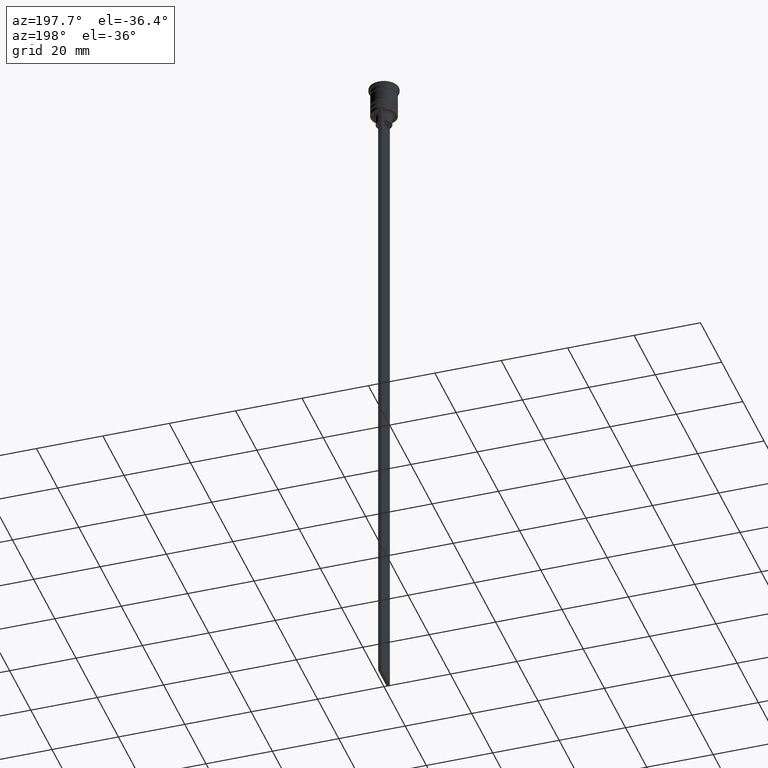
[diagram: clean part render]
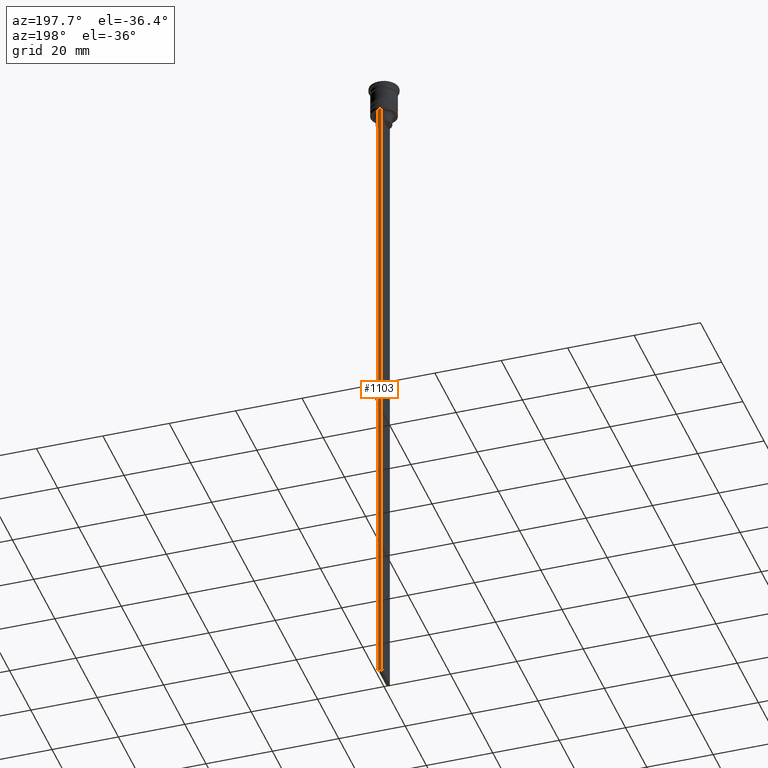
[diagram: same view with one face highlighted and labeled with its STEP entity id]
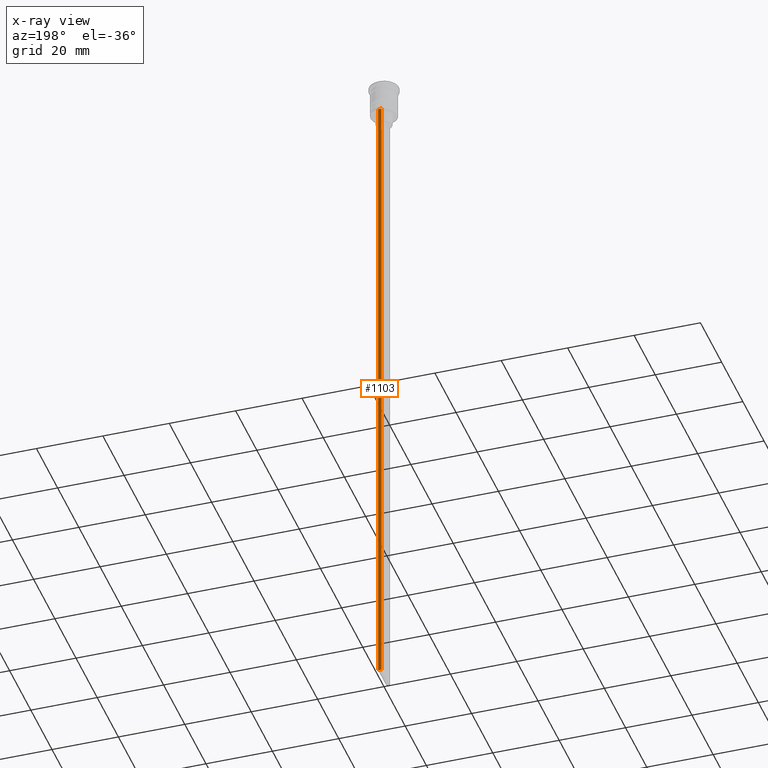
[diagram: x-ray of the same camera — body ghosted, the highlighted face saturated]
A machine part, auxiliary view. The second image highlights one B-rep face of the part: STEP entity #1103.
The next image is the same camera in x-ray: the body ghosted, the highlighted face saturated — about 0% of this face is hidden behind the body in this view.
In plain terms, the highlighted planar face has unit normal (0, -1, -0).
Its self-contained STEP definition (entity closure, byte-faithful):
#66 = EDGE_CURVE ( 'NONE', #2535, #1357, #1426, .T. ) ;
#186 = FACE_OUTER_BOUND ( 'NONE', #494, .T. ) ;
#240 = CARTESIAN_POINT ( 'NONE',  ( -0.5000000000000000000, 4.000000000000000000, -9.500000000000000000 ) ) ;
#244 = CARTESIAN_POINT ( 'NONE',  ( 0.5000000000000000000, 4.000000000000000000, -209.5000000000000284 ) ) ;
#259 = ORIENTED_EDGE ( 'NONE', *, *, #497, .T. ) ;
#269 = VECTOR ( 'NONE', #1654, 1000.000000000000000 ) ;
#383 = EDGE_CURVE ( 'NONE', #1666, #1357, #468, .T. ) ;
#468 = LINE ( 'NONE', #244, #2347 ) ;
#494 = EDGE_LOOP ( 'NONE', ( #653, #259, #1112, #2362 ) ) ;
#497 = EDGE_CURVE ( 'NONE', #2535, #1182, #1051, .T. ) ;
#653 = ORIENTED_EDGE ( 'NONE', *, *, #66, .F. ) ;
#746 = PLANE ( 'NONE',  #2429 ) ;
#802 = CARTESIAN_POINT ( 'NONE',  ( 0.5000000000000000000, 4.000000000000000000, -1.437742251701450202 ) ) ;
#872 = CARTESIAN_POINT ( 'NONE',  ( 0.5000000000000000000, 4.000000000000000000, -1.437742251701450202 ) ) ;
#1036 = VECTOR ( 'NONE', #1704, 1000.000000000000000 ) ;
#1051 = LINE ( 'NONE', #1635, #1036 ) ;
#1103 = ADVANCED_FACE ( 'NONE', ( #186 ), #746, .F. ) ;
#1112 = ORIENTED_EDGE ( 'NONE', *, *, #1373, .T. ) ;
#1140 = CARTESIAN_POINT ( 'NONE',  ( -0.5000000000000000000, 4.000000000000000000, -209.5000000000000284 ) ) ;
#1182 = VERTEX_POINT ( 'NONE', #2163 ) ;
#1231 = CARTESIAN_POINT ( 'NONE',  ( -0.5000000000000000000, 4.000000000000000000, -1.437742251701450202 ) ) ;
#1324 = DIRECTION ( 'NONE',  ( 0.000000000000000000, 0.000000000000000000, -1.000000000000000000 ) ) ;
#1357 = VERTEX_POINT ( 'NONE', #1140 ) ;
#1373 = EDGE_CURVE ( 'NONE', #1182, #1666, #2046, .T. ) ;
#1426 = LINE ( 'NONE', #1231, #1643 ) ;
#1454 = CARTESIAN_POINT ( 'NONE',  ( 0.5000000000000000000, 4.000000000000000000, -209.5000000000000284 ) ) ;
#1628 = DIRECTION ( 'NONE',  ( 0.000000000000000000, 0.000000000000000000, -1.000000000000000000 ) ) ;
#1635 = CARTESIAN_POINT ( 'NONE',  ( 0.5000000000000000000, 4.000000000000000000, -9.500000000000000000 ) ) ;
#1643 = VECTOR ( 'NONE', #1628, 1000.000000000000000 ) ;
#1654 = DIRECTION ( 'NONE',  ( 0.000000000000000000, 0.000000000000000000, -1.000000000000000000 ) ) ;
#1666 = VERTEX_POINT ( 'NONE', #1454 ) ;
#1704 = DIRECTION ( 'NONE',  ( 1.000000000000000000, 0.000000000000000000, 0.000000000000000000 ) ) ;
#1821 = DIRECTION ( 'NONE',  ( -1.000000000000000000, 0.000000000000000000, 0.000000000000000000 ) ) ;
#2046 = LINE ( 'NONE', #872, #269 ) ;
#2163 = CARTESIAN_POINT ( 'NONE',  ( 0.5000000000000000000, 4.000000000000000000, -9.500000000000000000 ) ) ;
#2347 = VECTOR ( 'NONE', #1821, 1000.000000000000000 ) ;
#2362 = ORIENTED_EDGE ( 'NONE', *, *, #383, .T. ) ;
#2429 = AXIS2_PLACEMENT_3D ( 'NONE', #802, #2529, #1324 ) ;
#2529 = DIRECTION ( 'NONE',  ( 0.000000000000000000, -1.000000000000000000, -0.000000000000000000 ) ) ;
#2535 = VERTEX_POINT ( 'NONE', #240 ) ;